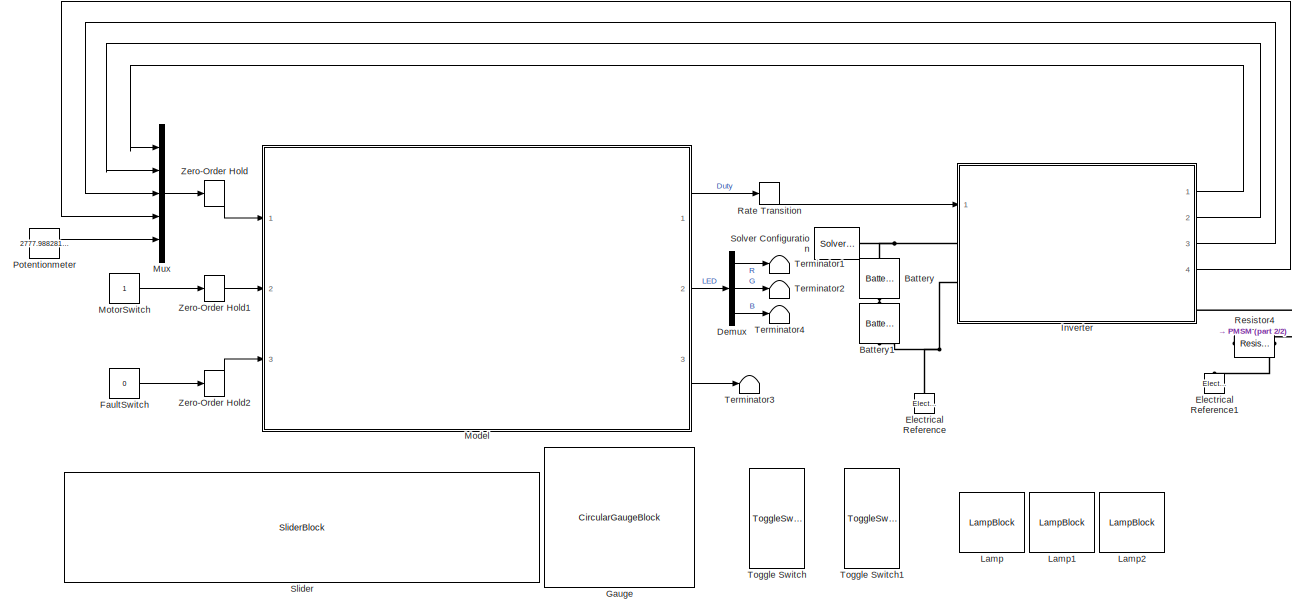
[diagram: root canvas - part 1/2, most of the canvas]
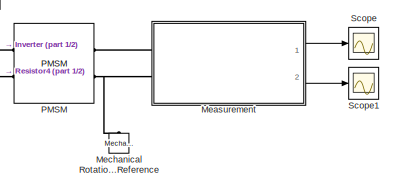
[diagram: root canvas - part 2/2, middle right region]
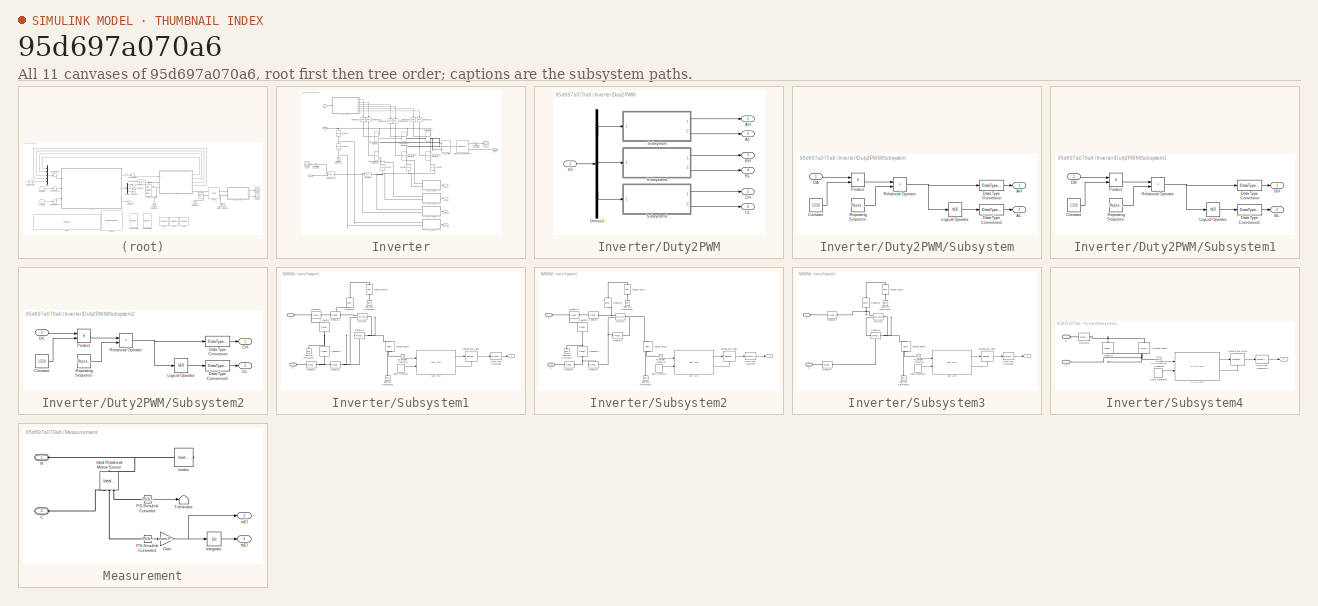
[diagram: thumbnail index - all 11 canvases of the model, root first then tree order]
MODEL slx_95d697a070a6
KIND model
CONFIG AbsTol = auto
CONFIG EnableMultiTasking = off
CONFIG FixedStep = Ts_simscape
CONFIG MaxStep = auto
CONFIG MinStep = auto
CONFIG RelTol = 1e-3
CONFIG SampleTimeConstraint = Unconstrained
CONFIG SolverName = FixedStepAuto
CONFIG StartTime = 0.0
CONFIG StopTime = 4
BLOCK [Reference] Battery  REF=ee_lib/Sources/Battery
  NameLocation = right
  Ports = [0, 0, 0, 0, 0, 1, 1]
  SourceBlock = ee_lib/Sources/Battery
  SourceProductBaseCode = PS
  SourceType = Battery
BLOCK [Reference] Battery1  REF=ee_lib/Sources/Battery
  NameLocation = right
  Ports = [0, 0, 0, 0, 0, 1, 1]
  SourceBlock = ee_lib/Sources/Battery
  SourceProductBaseCode = PS
  SourceType = Battery
BLOCK [Demux] Demux
  Outputs = 3
  Ports = [1, 3]
BLOCK [Reference] Electrical Reference  REF=fl_lib/Electrical/Electrical Elements/Electrical Reference
  NameLocation = right
  Ports = [0, 0, 0, 0, 0, 1]
  SourceBlock = fl_lib/Electrical/Electrical Elements/Electrical Reference
  SourceProductBaseCode = SS
  SourceType = Electrical Reference
BLOCK [Reference] Electrical Reference1  REF=fl_lib/Electrical/Electrical Elements/Electrical Reference
  NameLocation = right
  Ports = [0, 0, 0, 0, 0, 1]
  SourceBlock = fl_lib/Electrical/Electrical Elements/Electrical Reference
  SourceProductBaseCode = SS
  SourceType = Electrical Reference
BLOCK [Constant] FaultSwitch
  OutDataTypeStr = boolean
  Value = 0
BLOCK [CircularGaugeBlock] Gauge
  ScaleMax = 6.28
  TickInterval = 1
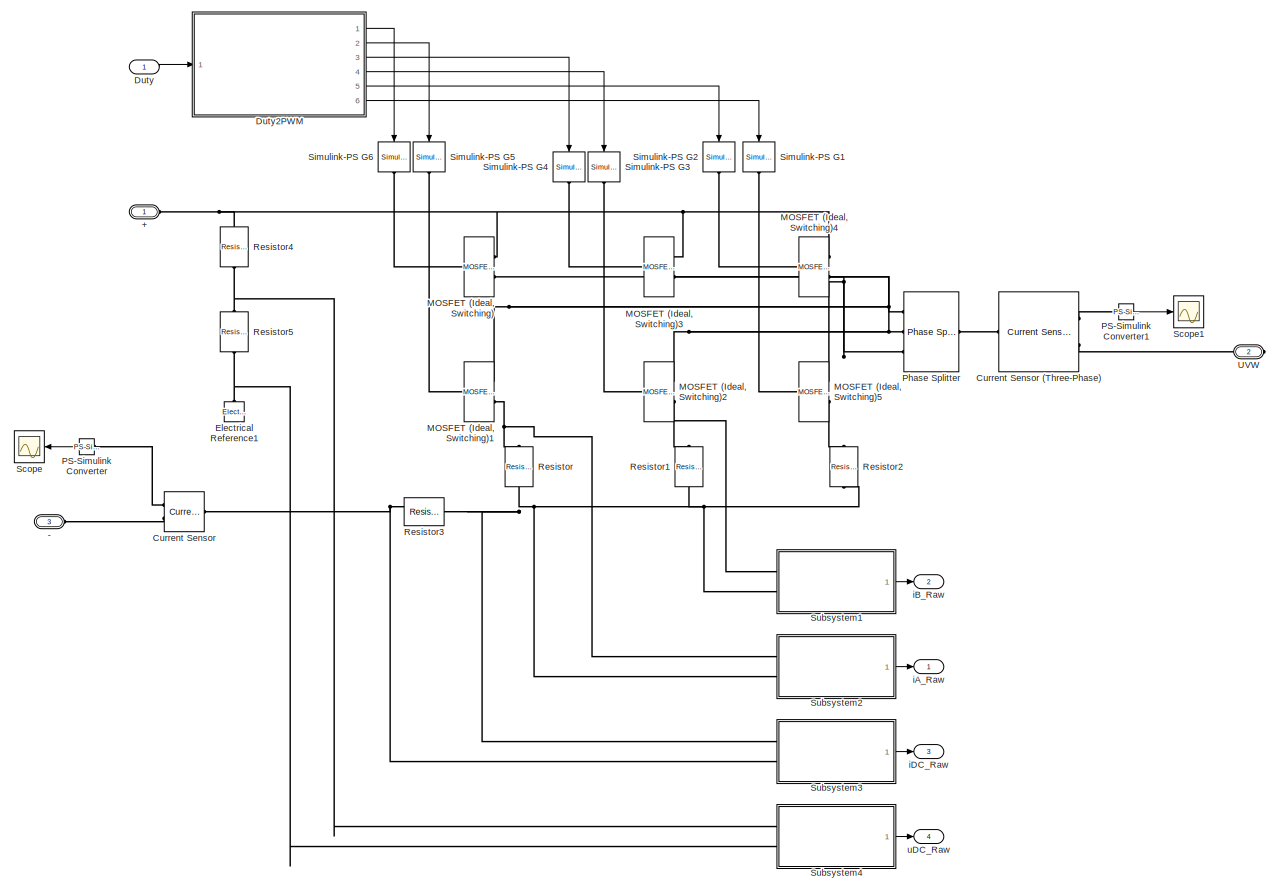
[diagram: Inverter - part 1/1, most of the canvas]
BLOCK [SubSystem] Inverter
  Ports = [1, 4, 0, 0, 0, 2, 1]
  RequestExecContextInheritance = off
BLOCK [Outport] Inverter/ iA_Raw
BLOCK [Outport] Inverter/ iB_Raw
  Port = 2
BLOCK [Outport] Inverter/ iDC_Raw
  Port = 3
BLOCK [Outport] Inverter/ uDC_Raw
  Port = 4
BLOCK [PMIOPort] Inverter/+
  Side = Left
BLOCK [PMIOPort] Inverter/-
  Port = 3
  Side = Left
BLOCK [Reference] Inverter/Current Sensor  REF=fl_lib/Electrical/Electrical Sensors/Current Sensor
  Ports = [0, 0, 0, 0, 0, 1, 2]
  SourceBlock = fl_lib/Electrical/Electrical Sensors/Current Sensor
  SourceProductBaseCode = SS
  SourceType = Current Sensor
BLOCK [Reference] Inverter/Current Sensor (Three-Phase)  REF=ee_lib/Sensors &
Transducers/Current Sensor
(Three-Phase)
  Ports = [0, 0, 0, 0, 0, 1, 2]
  SourceBlock = ee_lib/Sensors &\nTransducers/Current Sensor\n(Three-Phase)
  SourceProductBaseCode = PS
  SourceType = Current Sensor\n(Three-Phase)
BLOCK [Inport] Inverter/Duty
BLOCK [SubSystem] Inverter/Duty2PWM
  Ports = [1, 6]
  RequestExecContextInheritance = off
BLOCK [Outport] Inverter/Duty2PWM/AH
BLOCK [Outport] Inverter/Duty2PWM/AL
  Port = 2
BLOCK [Outport] Inverter/Duty2PWM/BH
  Port = 3
BLOCK [Outport] Inverter/Duty2PWM/BL
  Port = 4
BLOCK [Outport] Inverter/Duty2PWM/CH
  Port = 5
BLOCK [Outport] Inverter/Duty2PWM/CL
  Port = 6
BLOCK [Demux] Inverter/Duty2PWM/Demux1
  Outputs = 3
  Ports = [1, 3]
BLOCK [Inport] Inverter/Duty2PWM/In1
BLOCK [SubSystem] Inverter/Duty2PWM/Subsystem
  Ports = [1, 2]
  RequestExecContextInheritance = off
BLOCK [Outport] Inverter/Duty2PWM/Subsystem/AH
BLOCK [Outport] Inverter/Duty2PWM/Subsystem/AL
  Port = 2
BLOCK [Constant] Inverter/Duty2PWM/Subsystem/Constant
  Value = 1250
BLOCK [Inport] Inverter/Duty2PWM/Subsystem/DA
BLOCK [DataTypeConversion] Inverter/Duty2PWM/Subsystem/Data Type Conversion
  RndMeth = Floor
  SaturateOnIntegerOverflow = off
BLOCK [DataTypeConversion] Inverter/Duty2PWM/Subsystem/Data Type Conversion1
  RndMeth = Floor
  SaturateOnIntegerOverflow = off
BLOCK [Logic] Inverter/Duty2PWM/Subsystem/Logical Operator
  AllPortsSameDT = off
  Operator = NOT
  OutDataTypeStr = boolean
  Ports = [1, 1]
BLOCK [Product] Inverter/Duty2PWM/Subsystem/Product
  Ports = [2, 1]
BLOCK [RelationalOperator] Inverter/Duty2PWM/Subsystem/Relational Operator
  InputSameDT = off
  Operator = >
  OutDataTypeStr = boolean
  Ports = [2, 1]
  RndMeth = Simplest
BLOCK [Reference] Inverter/Duty2PWM/Subsystem/Repeating Sequence  REF=simulink/Sources/Repeating
Sequence
  Ports = [0, 1]
  SourceBlock = simulink/Sources/Repeating\nSequence
  SourceProductBaseCode = SL
  SourceType = Repeating table
BLOCK [SubSystem] Inverter/Duty2PWM/Subsystem1
  Ports = [1, 2]
  RequestExecContextInheritance = off
BLOCK [Outport] Inverter/Duty2PWM/Subsystem1/BH
BLOCK [Outport] Inverter/Duty2PWM/Subsystem1/BL
  Port = 2
BLOCK [Constant] Inverter/Duty2PWM/Subsystem1/Constant
  Value = 1250
BLOCK [Inport] Inverter/Duty2PWM/Subsystem1/DB
BLOCK [DataTypeConversion] Inverter/Duty2PWM/Subsystem1/Data Type Conversion
  RndMeth = Floor
  SaturateOnIntegerOverflow = off
BLOCK [DataTypeConversion] Inverter/Duty2PWM/Subsystem1/Data Type Conversion1
  RndMeth = Floor
  SaturateOnIntegerOverflow = off
BLOCK [Logic] Inverter/Duty2PWM/Subsystem1/Logical Operator
  AllPortsSameDT = off
  Operator = NOT
  OutDataTypeStr = boolean
  Ports = [1, 1]
BLOCK [Product] Inverter/Duty2PWM/Subsystem1/Product
  Ports = [2, 1]
BLOCK [RelationalOperator] Inverter/Duty2PWM/Subsystem1/Relational Operator
  InputSameDT = off
  Operator = >
  OutDataTypeStr = boolean
  Ports = [2, 1]
  RndMeth = Simplest
BLOCK [Reference] Inverter/Duty2PWM/Subsystem1/Repeating Sequence  REF=simulink/Sources/Repeating
Sequence
  Ports = [0, 1]
  SourceBlock = simulink/Sources/Repeating\nSequence
  SourceProductBaseCode = SL
  SourceType = Repeating table
BLOCK [SubSystem] Inverter/Duty2PWM/Subsystem2
  Ports = [1, 2]
  RequestExecContextInheritance = off
BLOCK [Outport] Inverter/Duty2PWM/Subsystem2/CH
BLOCK [Outport] Inverter/Duty2PWM/Subsystem2/CL
  Port = 2
BLOCK [Constant] Inverter/Duty2PWM/Subsystem2/Constant
  Value = 1250
BLOCK [Inport] Inverter/Duty2PWM/Subsystem2/DC
BLOCK [DataTypeConversion] Inverter/Duty2PWM/Subsystem2/Data Type Conversion
  RndMeth = Floor
  SaturateOnIntegerOverflow = off
BLOCK [DataTypeConversion] Inverter/Duty2PWM/Subsystem2/Data Type Conversion1
  RndMeth = Floor
  SaturateOnIntegerOverflow = off
BLOCK [Logic] Inverter/Duty2PWM/Subsystem2/Logical Operator
  AllPortsSameDT = off
  Operator = NOT
  OutDataTypeStr = boolean
  Ports = [1, 1]
BLOCK [Product] Inverter/Duty2PWM/Subsystem2/Product
  Ports = [2, 1]
BLOCK [RelationalOperator] Inverter/Duty2PWM/Subsystem2/Relational Operator
  InputSameDT = off
  Operator = >
  OutDataTypeStr = boolean
  Ports = [2, 1]
  RndMeth = Simplest
BLOCK [Reference] Inverter/Duty2PWM/Subsystem2/Repeating Sequence  REF=simulink/Sources/Repeating
Sequence
  Ports = [0, 1]
  SourceBlock = simulink/Sources/Repeating\nSequence
  SourceProductBaseCode = SL
  SourceType = Repeating table
BLOCK [Reference] Inverter/Electrical Reference1  REF=fl_lib/Electrical/Electrical Elements/Electrical Reference
  NameLocation = right
  Ports = [0, 0, 0, 0, 0, 1]
  SourceBlock = fl_lib/Electrical/Electrical Elements/Electrical Reference
  SourceProductBaseCode = SS
  SourceType = Electrical Reference
BLOCK [Reference] Inverter/MOSFET (Ideal, Switching)  REF=ee_lib/Semiconductors &
Converters/MOSFET
(Ideal,
Switching)
  Ports = [0, 0, 0, 0, 0, 1, 2]
  SourceBlock = ee_lib/Semiconductors &\nConverters/MOSFET\n(Ideal,\nSwitching)
  SourceProductBaseCode = PS
  SourceType = MOSFET\n(Ideal,\nSwitching)
BLOCK [Reference] Inverter/MOSFET (Ideal, Switching)1  REF=ee_lib/Semiconductors &
Converters/MOSFET
(Ideal,
Switching)
  Ports = [0, 0, 0, 0, 0, 1, 2]
  SourceBlock = ee_lib/Semiconductors &\nConverters/MOSFET\n(Ideal,\nSwitching)
  SourceProductBaseCode = PS
  SourceType = MOSFET\n(Ideal,\nSwitching)
BLOCK [Reference] Inverter/MOSFET (Ideal, Switching)2  REF=ee_lib/Semiconductors &
Converters/MOSFET
(Ideal,
Switching)
  Ports = [0, 0, 0, 0, 0, 1, 2]
  SourceBlock = ee_lib/Semiconductors &\nConverters/MOSFET\n(Ideal,\nSwitching)
  SourceProductBaseCode = PS
  SourceType = MOSFET\n(Ideal,\nSwitching)
BLOCK [Reference] Inverter/MOSFET (Ideal, Switching)3  REF=ee_lib/Semiconductors &
Converters/MOSFET
(Ideal,
Switching)
  Ports = [0, 0, 0, 0, 0, 1, 2]
  SourceBlock = ee_lib/Semiconductors &\nConverters/MOSFET\n(Ideal,\nSwitching)
  SourceProductBaseCode = PS
  SourceType = MOSFET\n(Ideal,\nSwitching)
BLOCK [Reference] Inverter/MOSFET (Ideal, Switching)4  REF=ee_lib/Semiconductors &
Converters/MOSFET
(Ideal,
Switching)
  Ports = [0, 0, 0, 0, 0, 1, 2]
  SourceBlock = ee_lib/Semiconductors &\nConverters/MOSFET\n(Ideal,\nSwitching)
  SourceProductBaseCode = PS
  SourceType = MOSFET\n(Ideal,\nSwitching)
BLOCK [Reference] Inverter/MOSFET (Ideal, Switching)5  REF=ee_lib/Semiconductors &
Converters/MOSFET
(Ideal,
Switching)
  Ports = [0, 0, 0, 0, 0, 1, 2]
  SourceBlock = ee_lib/Semiconductors &\nConverters/MOSFET\n(Ideal,\nSwitching)
  SourceProductBaseCode = PS
  SourceType = MOSFET\n(Ideal,\nSwitching)
BLOCK [Reference] Inverter/PS-Simulink Converter  REF=nesl_utility/PS-Simulink
Converter
  Ports = [0, 1, 0, 0, 0, 1]
  SourceBlock = nesl_utility/PS-Simulink\nConverter
  SourceProductBaseCode = SS
  SourceType = PS-Simulink\nConverter
BLOCK [Reference] Inverter/PS-Simulink Converter1  REF=nesl_utility/PS-Simulink
Converter
  Ports = [0, 1, 0, 0, 0, 1]
  SourceBlock = nesl_utility/PS-Simulink\nConverter
  SourceProductBaseCode = SS
  SourceType = PS-Simulink\nConverter
BLOCK [Reference] Inverter/Phase Splitter  REF=ee_lib/Connectors &
References/Phase Splitter
  Ports = [0, 0, 0, 0, 0, 1, 3]
  SourceBlock = ee_lib/Connectors &\nReferences/Phase Splitter
  SourceProductBaseCode = PS
  SourceType = Phase Splitter
BLOCK [Reference] Inverter/Resistor  REF=fl_lib/Electrical/Electrical Elements/Resistor
  NameLocation = left
  Ports = [0, 0, 0, 0, 0, 1, 1]
  SourceBlock = fl_lib/Electrical/Electrical Elements/Resistor
  SourceProductBaseCode = SS
  SourceType = Resistor
BLOCK [Reference] Inverter/Resistor1  REF=fl_lib/Electrical/Electrical Elements/Resistor
  NameLocation = left
  Ports = [0, 0, 0, 0, 0, 1, 1]
  SourceBlock = fl_lib/Electrical/Electrical Elements/Resistor
  SourceProductBaseCode = SS
  SourceType = Resistor
BLOCK [Reference] Inverter/Resistor2  REF=fl_lib/Electrical/Electrical Elements/Resistor
  NameLocation = left
  Ports = [0, 0, 0, 0, 0, 1, 1]
  SourceBlock = fl_lib/Electrical/Electrical Elements/Resistor
  SourceProductBaseCode = SS
  SourceType = Resistor
BLOCK [Reference] Inverter/Resistor3  REF=fl_lib/Electrical/Electrical Elements/Resistor
  NameLocation = top
  Ports = [0, 0, 0, 0, 0, 1, 1]
  SourceBlock = fl_lib/Electrical/Electrical Elements/Resistor
  SourceProductBaseCode = SS
  SourceType = Resistor
BLOCK [Reference] Inverter/Resistor4  REF=fl_lib/Electrical/Electrical Elements/Resistor
  NameLocation = left
  Ports = [0, 0, 0, 0, 0, 1, 1]
  SourceBlock = fl_lib/Electrical/Electrical Elements/Resistor
  SourceProductBaseCode = SS
  SourceType = Resistor
BLOCK [Reference] Inverter/Resistor5  REF=fl_lib/Electrical/Electrical Elements/Resistor
  NameLocation = left
  Ports = [0, 0, 0, 0, 0, 1, 1]
  SourceBlock = fl_lib/Electrical/Electrical Elements/Resistor
  SourceProductBaseCode = SS
  SourceType = Resistor
BLOCK [Scope] Inverter/Scope
  Floating = off
  NumInputPorts = 1
  Ports = [1]
  ScopeSpecificationString = Simulink.scopes.TimeScopeBlockCfg('CurrentConfiguration', extmgr.ConfigurationSet(extmgr.Configuration('Core','General UI',true),extmgr.Configuration('Core','Source UI',true),extmgr.Configuration('Sources','WiredSimulink',true,'DataLoggingVariableName','ScopeData3'),extmgr.Configuration('Visuals','Time Domain',true,'SerializedDisplays',{struct('MinYLimReal','-0.13845','MaxYLimReal','1.25097','YLab...<+1786ch>
BLOCK [Scope] Inverter/Scope1
  Floating = off
  NumInputPorts = 1
  Ports = [1]
  ScopeSpecificationString = Simulink.scopes.TimeScopeBlockCfg('CurrentConfiguration', extmgr.ConfigurationSet(extmgr.Configuration('Core','General UI',true),extmgr.Configuration('Core','Source UI',true),extmgr.Configuration('Sources','WiredSimulink',true,'DataLoggingVariableName','ScopeData5'),extmgr.Configuration('Visuals','Time Domain',true,'SerializedDisplays',{struct('MinYLimReal','-1.40117','MaxYLimReal','1.35141','YLab...<+1410ch>
BLOCK [Reference] Inverter/Simulink-PS G1  REF=nesl_utility/Simulink-PS
Converter
  NameLocation = left
  Ports = [1, 0, 0, 0, 0, 0, 1]
  SourceBlock = nesl_utility/Simulink-PS\nConverter
  SourceProductName = Utilities
  SourceType = Simulink-PS\nConverter
BLOCK [Reference] Inverter/Simulink-PS G2  REF=nesl_utility/Simulink-PS
Converter
  NameLocation = left
  Ports = [1, 0, 0, 0, 0, 0, 1]
  SourceBlock = nesl_utility/Simulink-PS\nConverter
  SourceProductName = Utilities
  SourceType = Simulink-PS\nConverter
BLOCK [Reference] Inverter/Simulink-PS G3  REF=nesl_utility/Simulink-PS
Converter
  NameLocation = right
  Ports = [1, 0, 0, 0, 0, 0, 1]
  SourceBlock = nesl_utility/Simulink-PS\nConverter
  SourceProductName = Utilities
  SourceType = Simulink-PS\nConverter
BLOCK [Reference] Inverter/Simulink-PS G4  REF=nesl_utility/Simulink-PS
Converter
  NameLocation = left
  Ports = [1, 0, 0, 0, 0, 0, 1]
  SourceBlock = nesl_utility/Simulink-PS\nConverter
  SourceProductName = Utilities
  SourceType = Simulink-PS\nConverter
BLOCK [Reference] Inverter/Simulink-PS G5  REF=nesl_utility/Simulink-PS
Converter
  NameLocation = left
  Ports = [1, 0, 0, 0, 0, 0, 1]
  SourceBlock = nesl_utility/Simulink-PS\nConverter
  SourceProductName = Utilities
  SourceType = Simulink-PS\nConverter
BLOCK [Reference] Inverter/Simulink-PS G6  REF=nesl_utility/Simulink-PS
Converter
  NameLocation = left
  Ports = [1, 0, 0, 0, 0, 0, 1]
  SourceBlock = nesl_utility/Simulink-PS\nConverter
  SourceProductName = Utilities
  SourceType = Simulink-PS\nConverter
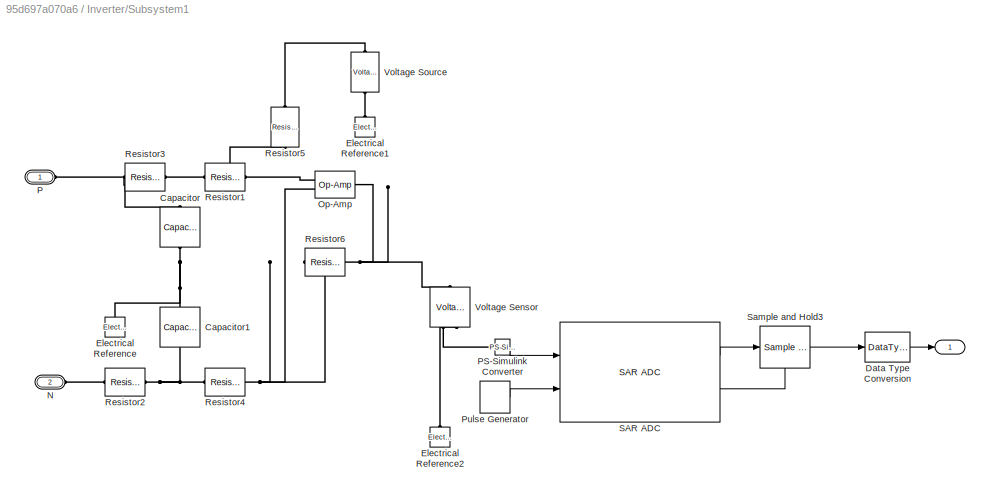
BLOCK [SubSystem] Inverter/Subsystem1
  Ports = [0, 1, 0, 0, 0, 2]
  RequestExecContextInheritance = off
BLOCK [Outport] Inverter/Subsystem1/ 
BLOCK [Reference] Inverter/Subsystem1/Capacitor  REF=fl_lib/Electrical/Electrical Elements/Capacitor
  NameLocation = left
  Ports = [0, 0, 0, 0, 0, 1, 1]
  SourceBlock = fl_lib/Electrical/Electrical Elements/Capacitor
  SourceProductBaseCode = SS
  SourceType = Capacitor
BLOCK [Reference] Inverter/Subsystem1/Capacitor1  REF=fl_lib/Electrical/Electrical Elements/Capacitor
  NameLocation = left
  Ports = [0, 0, 0, 0, 0, 1, 1]
  SourceBlock = fl_lib/Electrical/Electrical Elements/Capacitor
  SourceProductBaseCode = SS
  SourceType = Capacitor
BLOCK [DataTypeConversion] Inverter/Subsystem1/Data Type Conversion
  OutDataTypeStr = uint16
  RndMeth = Floor
  SaturateOnIntegerOverflow = off
BLOCK [Reference] Inverter/Subsystem1/Electrical Reference  REF=fl_lib/Electrical/Electrical Elements/Electrical Reference
  NameLocation = right
  Ports = [0, 0, 0, 0, 0, 1]
  SourceBlock = fl_lib/Electrical/Electrical Elements/Electrical Reference
  SourceProductBaseCode = SS
  SourceType = Electrical Reference
BLOCK [Reference] Inverter/Subsystem1/Electrical Reference1  REF=fl_lib/Electrical/Electrical Elements/Electrical Reference
  NameLocation = right
  Ports = [0, 0, 0, 0, 0, 1]
  SourceBlock = fl_lib/Electrical/Electrical Elements/Electrical Reference
  SourceProductBaseCode = SS
  SourceType = Electrical Reference
BLOCK [Reference] Inverter/Subsystem1/Electrical Reference2  REF=fl_lib/Electrical/Electrical Elements/Electrical Reference
  NameLocation = right
  Ports = [0, 0, 0, 0, 0, 1]
  SourceBlock = fl_lib/Electrical/Electrical Elements/Electrical Reference
  SourceProductBaseCode = SS
  SourceType = Electrical Reference
BLOCK [PMIOPort] Inverter/Subsystem1/N
  Port = 2
  Side = Left
BLOCK [Reference] Inverter/Subsystem1/Op-Amp  REF=fl_lib/Electrical/Electrical Elements/Op-Amp
  Ports = [0, 0, 0, 0, 0, 2, 1]
  SourceBlock = fl_lib/Electrical/Electrical Elements/Op-Amp
  SourceProductBaseCode = SS
  SourceType = Op-Amp
BLOCK [PMIOPort] Inverter/Subsystem1/P
  Side = Left
BLOCK [Reference] Inverter/Subsystem1/PS-Simulink Converter  REF=nesl_utility/PS-Simulink
Converter
  Ports = [0, 1, 0, 0, 0, 1]
  SourceBlock = nesl_utility/PS-Simulink\nConverter
  SourceProductBaseCode = SS
  SourceType = PS-Simulink\nConverter
BLOCK [DiscretePulseGenerator] Inverter/Subsystem1/Pulse Generator
  Period = Tctr
  PhaseDelay = Tctr
  Ports = [0, 1]
  PulseType = Time based
  PulseWidth = 50
BLOCK [Reference] Inverter/Subsystem1/Resistor1  REF=fl_lib/Electrical/Electrical Elements/Resistor
  NameLocation = top
  Ports = [0, 0, 0, 0, 0, 1, 1]
  SourceBlock = fl_lib/Electrical/Electrical Elements/Resistor
  SourceProductBaseCode = SS
  SourceType = Resistor
BLOCK [Reference] Inverter/Subsystem1/Resistor2  REF=fl_lib/Electrical/Electrical Elements/Resistor
  NameLocation = top
  Ports = [0, 0, 0, 0, 0, 1, 1]
  SourceBlock = fl_lib/Electrical/Electrical Elements/Resistor
  SourceProductBaseCode = SS
  SourceType = Resistor
BLOCK [Reference] Inverter/Subsystem1/Resistor3  REF=fl_lib/Electrical/Electrical Elements/Resistor
  NameLocation = top
  Ports = [0, 0, 0, 0, 0, 1, 1]
  SourceBlock = fl_lib/Electrical/Electrical Elements/Resistor
  SourceProductBaseCode = SS
  SourceType = Resistor
BLOCK [Reference] Inverter/Subsystem1/Resistor4  REF=fl_lib/Electrical/Electrical Elements/Resistor
  NameLocation = top
  Ports = [0, 0, 0, 0, 0, 1, 1]
  SourceBlock = fl_lib/Electrical/Electrical Elements/Resistor
  SourceProductBaseCode = SS
  SourceType = Resistor
BLOCK [Reference] Inverter/Subsystem1/Resistor5  REF=fl_lib/Electrical/Electrical Elements/Resistor
  NameLocation = right
  Ports = [0, 0, 0, 0, 0, 1, 1]
  SourceBlock = fl_lib/Electrical/Electrical Elements/Resistor
  SourceProductBaseCode = SS
  SourceType = Resistor
BLOCK [Reference] Inverter/Subsystem1/Resistor6  REF=fl_lib/Electrical/Electrical Elements/Resistor
  NameLocation = top
  Ports = [0, 0, 0, 0, 0, 1, 1]
  SourceBlock = fl_lib/Electrical/Electrical Elements/Resistor
  SourceProductBaseCode = SS
  SourceType = Resistor
BLOCK [Reference] Inverter/Subsystem1/SAR ADC  REF=msbAdcArchitectures/SAR ADC
  Ports = [2, 2]
  SourceBlock = msbAdcArchitectures/SAR ADC
  SourceProductBaseCode = AM
  SourceType = SARADC
BLOCK [Reference] Inverter/Subsystem1/Sample and Hold3  REF=dspsigops/Sample
and Hold
  NameLocation = top
  Ports = [1, 1, 0, 1]
  SourceBlock = dspsigops/Sample\nand Hold
  SourceProductBaseCode = DS
  SourceType = Sample and Hold
BLOCK [Reference] Inverter/Subsystem1/Voltage Sensor  REF=fl_lib/Electrical/Electrical Sensors/Voltage Sensor
  NameLocation = right
  Ports = [0, 0, 0, 0, 0, 1, 2]
  SourceBlock = fl_lib/Electrical/Electrical Sensors/Voltage Sensor
  SourceProductBaseCode = SS
  SourceType = Voltage Sensor
BLOCK [Reference] Inverter/Subsystem1/Voltage Source  REF=ee_lib/Sources/Voltage Source
  NameLocation = right
  Ports = [0, 0, 0, 0, 0, 1, 1]
  SourceBlock = ee_lib/Sources/Voltage Source
  SourceProductBaseCode = PS
  SourceType = Voltage Source
BLOCK [SubSystem] Inverter/Subsystem2
  Ports = [0, 1, 0, 0, 0, 2]
  RequestExecContextInheritance = off
BLOCK [Outport] Inverter/Subsystem2/ 
BLOCK [Reference] Inverter/Subsystem2/Capacitor  REF=fl_lib/Electrical/Electrical Elements/Capacitor
  NameLocation = left
  Ports = [0, 0, 0, 0, 0, 1, 1]
  SourceBlock = fl_lib/Electrical/Electrical Elements/Capacitor
  SourceProductBaseCode = SS
  SourceType = Capacitor
BLOCK [Reference] Inverter/Subsystem2/Capacitor1  REF=fl_lib/Electrical/Electrical Elements/Capacitor
  NameLocation = left
  Ports = [0, 0, 0, 0, 0, 1, 1]
  SourceBlock = fl_lib/Electrical/Electrical Elements/Capacitor
  SourceProductBaseCode = SS
  SourceType = Capacitor
BLOCK [DataTypeConversion] Inverter/Subsystem2/Data Type Conversion
  OutDataTypeStr = uint16
  RndMeth = Floor
  SaturateOnIntegerOverflow = off
BLOCK [Reference] Inverter/Subsystem2/Electrical Reference  REF=fl_lib/Electrical/Electrical Elements/Electrical Reference
  NameLocation = right
  Ports = [0, 0, 0, 0, 0, 1]
  SourceBlock = fl_lib/Electrical/Electrical Elements/Electrical Reference
  SourceProductBaseCode = SS
  SourceType = Electrical Reference
BLOCK [Reference] Inverter/Subsystem2/Electrical Reference1  REF=fl_lib/Electrical/Electrical Elements/Electrical Reference
  NameLocation = right
  Ports = [0, 0, 0, 0, 0, 1]
  SourceBlock = fl_lib/Electrical/Electrical Elements/Electrical Reference
  SourceProductBaseCode = SS
  SourceType = Electrical Reference
BLOCK [Reference] Inverter/Subsystem2/Electrical Reference2  REF=fl_lib/Electrical/Electrical Elements/Electrical Reference
  NameLocation = right
  Ports = [0, 0, 0, 0, 0, 1]
  SourceBlock = fl_lib/Electrical/Electrical Elements/Electrical Reference
  SourceProductBaseCode = SS
  SourceType = Electrical Reference
BLOCK [PMIOPort] Inverter/Subsystem2/N
  Port = 2
  Side = Left
BLOCK [Reference] Inverter/Subsystem2/Op-Amp  REF=fl_lib/Electrical/Electrical Elements/Op-Amp
  Ports = [0, 0, 0, 0, 0, 2, 1]
  SourceBlock = fl_lib/Electrical/Electrical Elements/Op-Amp
  SourceProductBaseCode = SS
  SourceType = Op-Amp
BLOCK [PMIOPort] Inverter/Subsystem2/P
  Side = Left
BLOCK [Reference] Inverter/Subsystem2/PS-Simulink Converter  REF=nesl_utility/PS-Simulink
Converter
  Ports = [0, 1, 0, 0, 0, 1]
  SourceBlock = nesl_utility/PS-Simulink\nConverter
  SourceProductBaseCode = SS
  SourceType = PS-Simulink\nConverter
BLOCK [DiscretePulseGenerator] Inverter/Subsystem2/Pulse Generator
  Period = Tctr
  PhaseDelay = Tctr
  Ports = [0, 1]
  PulseType = Time based
  PulseWidth = 50
BLOCK [Reference] Inverter/Subsystem2/Resistor1  REF=fl_lib/Electrical/Electrical Elements/Resistor
  NameLocation = top
  Ports = [0, 0, 0, 0, 0, 1, 1]
  SourceBlock = fl_lib/Electrical/Electrical Elements/Resistor
  SourceProductBaseCode = SS
  SourceType = Resistor
BLOCK [Reference] Inverter/Subsystem2/Resistor2  REF=fl_lib/Electrical/Electrical Elements/Resistor
  NameLocation = top
  Ports = [0, 0, 0, 0, 0, 1, 1]
  SourceBlock = fl_lib/Electrical/Electrical Elements/Resistor
  SourceProductBaseCode = SS
  SourceType = Resistor
BLOCK [Reference] Inverter/Subsystem2/Resistor3  REF=fl_lib/Electrical/Electrical Elements/Resistor
  NameLocation = top
  Ports = [0, 0, 0, 0, 0, 1, 1]
  SourceBlock = fl_lib/Electrical/Electrical Elements/Resistor
  SourceProductBaseCode = SS
  SourceType = Resistor
BLOCK [Reference] Inverter/Subsystem2/Resistor4  REF=fl_lib/Electrical/Electrical Elements/Resistor
  NameLocation = top
  Ports = [0, 0, 0, 0, 0, 1, 1]
  SourceBlock = fl_lib/Electrical/Electrical Elements/Resistor
  SourceProductBaseCode = SS
  SourceType = Resistor
BLOCK [Reference] Inverter/Subsystem2/Resistor5  REF=fl_lib/Electrical/Electrical Elements/Resistor
  NameLocation = right
  Ports = [0, 0, 0, 0, 0, 1, 1]
  SourceBlock = fl_lib/Electrical/Electrical Elements/Resistor
  SourceProductBaseCode = SS
  SourceType = Resistor
BLOCK [Reference] Inverter/Subsystem2/Resistor6  REF=fl_lib/Electrical/Electrical Elements/Resistor
  NameLocation = top
  Ports = [0, 0, 0, 0, 0, 1, 1]
  SourceBlock = fl_lib/Electrical/Electrical Elements/Resistor
  SourceProductBaseCode = SS
  SourceType = Resistor
BLOCK [Reference] Inverter/Subsystem2/SAR ADC  REF=msbAdcArchitectures/SAR ADC
  Ports = [2, 2]
  SourceBlock = msbAdcArchitectures/SAR ADC
  SourceProductBaseCode = AM
  SourceType = SARADC
BLOCK [Reference] Inverter/Subsystem2/Sample and Hold3  REF=dspsigops/Sample
and Hold
  NameLocation = top
  Ports = [1, 1, 0, 1]
  SourceBlock = dspsigops/Sample\nand Hold
  SourceProductBaseCode = DS
  SourceType = Sample and Hold
BLOCK [Reference] Inverter/Subsystem2/Voltage Sensor  REF=fl_lib/Electrical/Electrical Sensors/Voltage Sensor
  NameLocation = right
  Ports = [0, 0, 0, 0, 0, 1, 2]
  SourceBlock = fl_lib/Electrical/Electrical Sensors/Voltage Sensor
  SourceProductBaseCode = SS
  SourceType = Voltage Sensor
BLOCK [Reference] Inverter/Subsystem2/Voltage Source  REF=ee_lib/Sources/Voltage Source
  NameLocation = right
  Ports = [0, 0, 0, 0, 0, 1, 1]
  SourceBlock = ee_lib/Sources/Voltage Source
  SourceProductBaseCode = PS
  SourceType = Voltage Source
BLOCK [SubSystem] Inverter/Subsystem3
  Ports = [0, 1, 0, 0, 0, 2]
  RequestExecContextInheritance = off
BLOCK [Outport] Inverter/Subsystem3/ 
BLOCK [DataTypeConversion] Inverter/Subsystem3/Data Type Conversion
  OutDataTypeStr = uint16
  RndMeth = Floor
  SaturateOnIntegerOverflow = off
BLOCK [Reference] Inverter/Subsystem3/Electrical Reference1  REF=fl_lib/Electrical/Electrical Elements/Electrical Reference
  NameLocation = right
  Ports = [0, 0, 0, 0, 0, 1]
  SourceBlock = fl_lib/Electrical/Electrical Elements/Electrical Reference
  SourceProductBaseCode = SS
  SourceType = Electrical Reference
BLOCK [Reference] Inverter/Subsystem3/Electrical Reference2  REF=fl_lib/Electrical/Electrical Elements/Electrical Reference
  NameLocation = right
  Ports = [0, 0, 0, 0, 0, 1]
  SourceBlock = fl_lib/Electrical/Electrical Elements/Electrical Reference
  SourceProductBaseCode = SS
  SourceType = Electrical Reference
BLOCK [PMIOPort] Inverter/Subsystem3/N
  Port = 2
  Side = Left
BLOCK [Reference] Inverter/Subsystem3/Op-Amp  REF=fl_lib/Electrical/Electrical Elements/Op-Amp
  Ports = [0, 0, 0, 0, 0, 2, 1]
  SourceBlock = fl_lib/Electrical/Electrical Elements/Op-Amp
  SourceProductBaseCode = SS
  SourceType = Op-Amp
BLOCK [PMIOPort] Inverter/Subsystem3/P
  Side = Left
BLOCK [Reference] Inverter/Subsystem3/PS-Simulink Converter  REF=nesl_utility/PS-Simulink
Converter
  Ports = [0, 1, 0, 0, 0, 1]
  SourceBlock = nesl_utility/PS-Simulink\nConverter
  SourceProductBaseCode = SS
  SourceType = PS-Simulink\nConverter
BLOCK [DiscretePulseGenerator] Inverter/Subsystem3/Pulse Generator
  Period = Tctr
  PhaseDelay = Tctr/4
  Ports = [0, 1]
  PulseType = Time based
  PulseWidth = 50
BLOCK [Reference] Inverter/Subsystem3/Resistor2  REF=fl_lib/Electrical/Electrical Elements/Resistor
  NameLocation = top
  Ports = [0, 0, 0, 0, 0, 1, 1]
  SourceBlock = fl_lib/Electrical/Electrical Elements/Resistor
  SourceProductBaseCode = SS
  SourceType = Resistor
BLOCK [Reference] Inverter/Subsystem3/Resistor3  REF=fl_lib/Electrical/Electrical Elements/Resistor
  NameLocation = top
  Ports = [0, 0, 0, 0, 0, 1, 1]
  SourceBlock = fl_lib/Electrical/Electrical Elements/Resistor
  SourceProductBaseCode = SS
  SourceType = Resistor
BLOCK [Reference] Inverter/Subsystem3/Resistor5  REF=fl_lib/Electrical/Electrical Elements/Resistor
  NameLocation = right
  Ports = [0, 0, 0, 0, 0, 1, 1]
  SourceBlock = fl_lib/Electrical/Electrical Elements/Resistor
  SourceProductBaseCode = SS
  SourceType = Resistor
BLOCK [Reference] Inverter/Subsystem3/Resistor6  REF=fl_lib/Electrical/Electrical Elements/Resistor
  NameLocation = top
  Ports = [0, 0, 0, 0, 0, 1, 1]
  SourceBlock = fl_lib/Electrical/Electrical Elements/Resistor
  SourceProductBaseCode = SS
  SourceType = Resistor
BLOCK [Reference] Inverter/Subsystem3/SAR ADC  REF=msbAdcArchitectures/SAR ADC
  Ports = [2, 2]
  SourceBlock = msbAdcArchitectures/SAR ADC
  SourceProductBaseCode = AM
  SourceType = SARADC
BLOCK [Reference] Inverter/Subsystem3/Sample and Hold3  REF=dspsigops/Sample
and Hold
  NameLocation = top
  Ports = [1, 1, 0, 1]
  SourceBlock = dspsigops/Sample\nand Hold
  SourceProductBaseCode = DS
  SourceType = Sample and Hold
BLOCK [Reference] Inverter/Subsystem3/Voltage Sensor  REF=fl_lib/Electrical/Electrical Sensors/Voltage Sensor
  NameLocation = right
  Ports = [0, 0, 0, 0, 0, 1, 2]
  SourceBlock = fl_lib/Electrical/Electrical Sensors/Voltage Sensor
  SourceProductBaseCode = SS
  SourceType = Voltage Sensor
BLOCK [Reference] Inverter/Subsystem3/Voltage Source  REF=ee_lib/Sources/Voltage Source
  NameLocation = right
  Ports = [0, 0, 0, 0, 0, 1, 1]
  SourceBlock = ee_lib/Sources/Voltage Source
  SourceProductBaseCode = PS
  SourceType = Voltage Source
BLOCK [SubSystem] Inverter/Subsystem4
  Ports = [0, 1, 0, 0, 0, 2]
  RequestExecContextInheritance = off
BLOCK [Outport] Inverter/Subsystem4/ 
BLOCK [Reference] Inverter/Subsystem4/Capacitor  REF=fl_lib/Electrical/Electrical Elements/Capacitor
  NameLocation = left
  Ports = [0, 0, 0, 0, 0, 1, 1]
  SourceBlock = fl_lib/Electrical/Electrical Elements/Capacitor
  SourceProductBaseCode = SS
  SourceType = Capacitor
BLOCK [DataTypeConversion] Inverter/Subsystem4/Data Type Conversion
  OutDataTypeStr = uint16
  RndMeth = Floor
  SaturateOnIntegerOverflow = off
BLOCK [PMIOPort] Inverter/Subsystem4/N
  Port = 2
  Side = Left
BLOCK [PMIOPort] Inverter/Subsystem4/P
  Side = Left
BLOCK [Reference] Inverter/Subsystem4/PS-Simulink Converter  REF=nesl_utility/PS-Simulink
Converter
  Ports = [0, 1, 0, 0, 0, 1]
  SourceBlock = nesl_utility/PS-Simulink\nConverter
  SourceProductBaseCode = SS
  SourceType = PS-Simulink\nConverter
BLOCK [DiscretePulseGenerator] Inverter/Subsystem4/Pulse Generator
  Period = Tctr
  PhaseDelay = Tctr/2
  Ports = [0, 1]
  PulseType = Time based
  PulseWidth = 50
BLOCK [Reference] Inverter/Subsystem4/Resistor6  REF=fl_lib/Electrical/Electrical Elements/Resistor
  NameLocation = top
  Ports = [0, 0, 0, 0, 0, 1, 1]
  SourceBlock = fl_lib/Electrical/Electrical Elements/Resistor
  SourceProductBaseCode = SS
  SourceType = Resistor
BLOCK [Reference] Inverter/Subsystem4/SAR ADC  REF=msbAdcArchitectures/SAR ADC
  Ports = [2, 2]
  SourceBlock = msbAdcArchitectures/SAR ADC
  SourceProductBaseCode = AM
  SourceType = SARADC
BLOCK [Reference] Inverter/Subsystem4/Sample and Hold3  REF=dspsigops/Sample
and Hold
  NameLocation = top
  Ports = [1, 1, 0, 1]
  SourceBlock = dspsigops/Sample\nand Hold
  SourceProductBaseCode = DS
  SourceType = Sample and Hold
BLOCK [Reference] Inverter/Subsystem4/Voltage Sensor  REF=fl_lib/Electrical/Electrical Sensors/Voltage Sensor
  NameLocation = right
  Ports = [0, 0, 0, 0, 0, 1, 2]
  SourceBlock = fl_lib/Electrical/Electrical Sensors/Voltage Sensor
  SourceProductBaseCode = SS
  SourceType = Voltage Sensor
BLOCK [PMIOPort] Inverter/UVW
  Port = 2
  Side = Right
BLOCK [LampBlock] Lamp
BLOCK [LampBlock] Lamp1
BLOCK [LampBlock] Lamp2
BLOCK [SubSystem] Measurement
  Ports = [0, 2, 0, 0, 0, 2]
  RequestExecContextInheritance = off
BLOCK [PMIOPort] Measurement/C
  Port = 2
  Side = Left
BLOCK [Gain] Measurement/Gain
  Gain = motor.Prs
BLOCK [Reference] Measurement/Ideal Rotational Motion Sensor  REF=fl_lib/Mechanical/Mechanical Sensors/Ideal Rotational
Motion Sensor
  NameLocation = right
  Ports = [0, 0, 0, 0, 0, 1, 3]
  SourceBlock = fl_lib/Mechanical/Mechanical Sensors/Ideal Rotational\nMotion Sensor
  SourceProductBaseCode = SS
  SourceType = Ideal Rotational\nMotion Sensor
BLOCK [Reference] Measurement/Inertia  REF=fl_lib/Mechanical/Rotational Elements/Inertia
  NameLocation = top
  Ports = [0, 0, 0, 0, 0, 1]
  SourceBlock = fl_lib/Mechanical/Rotational Elements/Inertia
  SourceProductBaseCode = SS
  SourceType = Inertia
BLOCK [Integrator] Measurement/Integrator
  Ports = [1, 1]
  WrapState = on
  WrappedStateLowerValue = 0
  WrappedStateUpperValue = 2*pi
BLOCK [Reference] Measurement/PS-Simulink Converter  REF=nesl_utility/PS-Simulink
Converter
  Ports = [0, 1, 0, 0, 0, 1]
  SourceBlock = nesl_utility/PS-Simulink\nConverter
  SourceProductBaseCode = SS
  SourceType = PS-Simulink\nConverter
BLOCK [Reference] Measurement/PS-Simulink Converter1  REF=nesl_utility/PS-Simulink
Converter
  Ports = [0, 1, 0, 0, 0, 1]
  SourceBlock = nesl_utility/PS-Simulink\nConverter
  SourceProductBaseCode = SS
  SourceType = PS-Simulink\nConverter
BLOCK [PMIOPort] Measurement/R
  Side = Left
BLOCK [Terminator] Measurement/Terminator
BLOCK [Outport] Measurement/thEl
  Port = 2
BLOCK [Outport] Measurement/wEl
BLOCK [Reference] Mechanical Rotational Reference  REF=fl_lib/Mechanical/Rotational Elements/Mechanical
Rotational Reference
  NameLocation = right
  Ports = [0, 0, 0, 0, 0, 1]
  SourceBlock = fl_lib/Mechanical/Rotational Elements/Mechanical\nRotational Reference
  SourceProductBaseCode = SS
  SourceType = Mechanical\nRotational Reference
BLOCK [ModelReference] Model
  ModelNameDialog = FOC_PIL_StateMch_model.slx
  ModelReferenceVersion = 1.590
  Ports = [3, 3]
BLOCK [Constant] MotorSwitch
  OutDataTypeStr = boolean
BLOCK [Mux] Mux
  DisplayOption = bar
  Inputs = 5
  Ports = [5, 1]
BLOCK [Reference] PMSM  REF=ee_lib/Electromechanical/Permanent Magnet/PMSM
  Ports = [0, 0, 0, 0, 0, 2, 2]
  SourceBlock = ee_lib/Electromechanical/Permanent Magnet/PMSM
  SourceProductBaseCode = PS
  SourceType = PMSM
BLOCK [Constant] Potentionmeter
  OutDataTypeStr = uint16
  Value = 2777.98828125
BLOCK [RateTransition] Rate Transition
BLOCK [Reference] Resistor4  REF=fl_lib/Electrical/Electrical Elements/Resistor
  NameLocation = top
  Ports = [0, 0, 0, 0, 0, 1, 1]
  SourceBlock = fl_lib/Electrical/Electrical Elements/Resistor
  SourceProductBaseCode = SS
  SourceType = Resistor
BLOCK [Scope] Scope
  Floating = off
  NumInputPorts = 1
  Ports = [1]
  ScopeSpecificationString = Simulink.scopes.TimeScopeBlockCfg('CurrentConfiguration', extmgr.ConfigurationSet(extmgr.Configuration('Core','General UI',true),extmgr.Configuration('Core','Source UI',true),extmgr.Configuration('Sources','WiredSimulink',true,'DataLoggingVariableName','ScopeData1'),extmgr.Configuration('Visuals','Time Domain',true),extmgr.Configuration('Tools','Plot Navigation',true),extmgr.Configuration('Tools',...<+40ch>
BLOCK [Scope] Scope1
  Floating = off
  NumInputPorts = 1
  Ports = [1]
  ScopeSpecificationString = Simulink.scopes.TimeScopeBlockCfg('CurrentConfiguration', extmgr.ConfigurationSet(extmgr.Configuration('Core','General UI',true),extmgr.Configuration('Core','Source UI',true),extmgr.Configuration('Sources','WiredSimulink',true,'DataLoggingVariableName','ScopeData2'),extmgr.Configuration('Visuals','Time Domain',true),extmgr.Configuration('Tools','Plot Navigation',true),extmgr.Configuration('Tools',...<+40ch>
BLOCK [SliderBlock] Slider
  ScaleMax = 4095
BLOCK [Reference] Solver Configuration  REF=nesl_utility/Solver
Configuration
  Ports = [0, 0, 0, 0, 0, 0, 1]
  SourceBlock = nesl_utility/Solver\nConfiguration
  SourceProductBaseCode = SS
  SourceType = Solver\nConfiguration
BLOCK [Terminator] Terminator1
BLOCK [Terminator] Terminator2
BLOCK [Terminator] Terminator3
BLOCK [Terminator] Terminator4
BLOCK [ToggleSwitchBlock] Toggle Switch
BLOCK [ToggleSwitchBlock] Toggle Switch1
BLOCK [ZeroOrderHold] Zero-Order Hold
  SampleTime = Tctr
BLOCK [ZeroOrderHold] Zero-Order Hold1
  SampleTime = Tctr
BLOCK [ZeroOrderHold] Zero-Order Hold2
  SampleTime = Tctr
LINE Demux:1 -> Terminator1:1
LINE Demux:2 -> Terminator2:1
LINE Demux:3 -> Terminator4:1
LINE FaultSwitch:1 -> Zero-Order Hold2:1
LINE Inverter/Duty2PWM/Demux1:1 -> Inverter/Duty2PWM/Subsystem:1
LINE Inverter/Duty2PWM/Demux1:2 -> Inverter/Duty2PWM/Subsystem1:1
LINE Inverter/Duty2PWM/Demux1:3 -> Inverter/Duty2PWM/Subsystem2:1
LINE Inverter/Duty2PWM/In1:1 -> Inverter/Duty2PWM/Demux1:1
LINE Inverter/Duty2PWM/Subsystem/Constant:1 -> Inverter/Duty2PWM/Subsystem/Product:2
LINE Inverter/Duty2PWM/Subsystem/DA:1 -> Inverter/Duty2PWM/Subsystem/Product:1
LINE Inverter/Duty2PWM/Subsystem/Data Type Conversion1:1 -> Inverter/Duty2PWM/Subsystem/AL:1
LINE Inverter/Duty2PWM/Subsystem/Data Type Conversion:1 -> Inverter/Duty2PWM/Subsystem/AH:1
LINE Inverter/Duty2PWM/Subsystem/Logical Operator:1 -> Inverter/Duty2PWM/Subsystem/Data Type Conversion1:1
LINE Inverter/Duty2PWM/Subsystem/Product:1 -> Inverter/Duty2PWM/Subsystem/Relational Operator:1
NET Inverter/Duty2PWM/Subsystem/Relational Operator:1 -> Inverter/Duty2PWM/Subsystem/Data Type Conversion:1, Inverter/Duty2PWM/Subsystem/Logical Operator:1
LINE Inverter/Duty2PWM/Subsystem/Repeating Sequence:1 -> Inverter/Duty2PWM/Subsystem/Relational Operator:2
LINE Inverter/Duty2PWM/Subsystem1/Constant:1 -> Inverter/Duty2PWM/Subsystem1/Product:2
LINE Inverter/Duty2PWM/Subsystem1/DB:1 -> Inverter/Duty2PWM/Subsystem1/Product:1
LINE Inverter/Duty2PWM/Subsystem1/Data Type Conversion1:1 -> Inverter/Duty2PWM/Subsystem1/BL:1
LINE Inverter/Duty2PWM/Subsystem1/Data Type Conversion:1 -> Inverter/Duty2PWM/Subsystem1/BH:1
LINE Inverter/Duty2PWM/Subsystem1/Logical Operator:1 -> Inverter/Duty2PWM/Subsystem1/Data Type Conversion1:1
LINE Inverter/Duty2PWM/Subsystem1/Product:1 -> Inverter/Duty2PWM/Subsystem1/Relational Operator:1
NET Inverter/Duty2PWM/Subsystem1/Relational Operator:1 -> Inverter/Duty2PWM/Subsystem1/Data Type Conversion:1, Inverter/Duty2PWM/Subsystem1/Logical Operator:1
LINE Inverter/Duty2PWM/Subsystem1/Repeating Sequence:1 -> Inverter/Duty2PWM/Subsystem1/Relational Operator:2
LINE Inverter/Duty2PWM/Subsystem1:1 -> Inverter/Duty2PWM/BH:1
LINE Inverter/Duty2PWM/Subsystem1:2 -> Inverter/Duty2PWM/BL:1
LINE Inverter/Duty2PWM/Subsystem2/Constant:1 -> Inverter/Duty2PWM/Subsystem2/Product:2
LINE Inverter/Duty2PWM/Subsystem2/DC:1 -> Inverter/Duty2PWM/Subsystem2/Product:1
LINE Inverter/Duty2PWM/Subsystem2/Data Type Conversion1:1 -> Inverter/Duty2PWM/Subsystem2/CL:1
LINE Inverter/Duty2PWM/Subsystem2/Data Type Conversion:1 -> Inverter/Duty2PWM/Subsystem2/CH:1
LINE Inverter/Duty2PWM/Subsystem2/Logical Operator:1 -> Inverter/Duty2PWM/Subsystem2/Data Type Conversion1:1
LINE Inverter/Duty2PWM/Subsystem2/Product:1 -> Inverter/Duty2PWM/Subsystem2/Relational Operator:1
NET Inverter/Duty2PWM/Subsystem2/Relational Operator:1 -> Inverter/Duty2PWM/Subsystem2/Data Type Conversion:1, Inverter/Duty2PWM/Subsystem2/Logical Operator:1
LINE Inverter/Duty2PWM/Subsystem2/Repeating Sequence:1 -> Inverter/Duty2PWM/Subsystem2/Relational Operator:2
LINE Inverter/Duty2PWM/Subsystem2:1 -> Inverter/Duty2PWM/CH:1
LINE Inverter/Duty2PWM/Subsystem2:2 -> Inverter/Duty2PWM/CL:1
LINE Inverter/Duty2PWM/Subsystem:1 -> Inverter/Duty2PWM/AH:1
LINE Inverter/Duty2PWM/Subsystem:2 -> Inverter/Duty2PWM/AL:1
LINE Inverter/Duty2PWM:1 -> Inverter/Simulink-PS G6:1
LINE Inverter/Duty2PWM:2 -> Inverter/Simulink-PS G5:1
LINE Inverter/Duty2PWM:3 -> Inverter/Simulink-PS G4:1
LINE Inverter/Duty2PWM:4 -> Inverter/Simulink-PS G3:1
LINE Inverter/Duty2PWM:5 -> Inverter/Simulink-PS G2:1
LINE Inverter/Duty2PWM:6 -> Inverter/Simulink-PS G1:1
LINE Inverter/Duty:1 -> Inverter/Duty2PWM:1
LINE Inverter/PS-Simulink Converter1:1 -> Inverter/Scope1:1
LINE Inverter/PS-Simulink Converter:1 -> Inverter/Scope:1
LINE Inverter/Subsystem1/Data Type Conversion:1 -> Inverter/Subsystem1/ :1
LINE Inverter/Subsystem1/PS-Simulink Converter:1 -> Inverter/Subsystem1/SAR ADC:1
LINE Inverter/Subsystem1/Pulse Generator:1 -> Inverter/Subsystem1/SAR ADC:2
LINE Inverter/Subsystem1/SAR ADC:1 -> Inverter/Subsystem1/Sample and Hold3:1
LINE Inverter/Subsystem1/SAR ADC:2 -> Inverter/Subsystem1/Sample and Hold3:trigger
LINE Inverter/Subsystem1/Sample and Hold3:1 -> Inverter/Subsystem1/Data Type Conversion:1
LINE Inverter/Subsystem1:1 -> Inverter/ iB_Raw:1
LINE Inverter/Subsystem2/Data Type Conversion:1 -> Inverter/Subsystem2/ :1
LINE Inverter/Subsystem2/PS-Simulink Converter:1 -> Inverter/Subsystem2/SAR ADC:1
LINE Inverter/Subsystem2/Pulse Generator:1 -> Inverter/Subsystem2/SAR ADC:2
LINE Inverter/Subsystem2/SAR ADC:1 -> Inverter/Subsystem2/Sample and Hold3:1
LINE Inverter/Subsystem2/SAR ADC:2 -> Inverter/Subsystem2/Sample and Hold3:trigger
LINE Inverter/Subsystem2/Sample and Hold3:1 -> Inverter/Subsystem2/Data Type Conversion:1
LINE Inverter/Subsystem2:1 -> Inverter/ iA_Raw:1
LINE Inverter/Subsystem3/Data Type Conversion:1 -> Inverter/Subsystem3/ :1
LINE Inverter/Subsystem3/PS-Simulink Converter:1 -> Inverter/Subsystem3/SAR ADC:1
LINE Inverter/Subsystem3/Pulse Generator:1 -> Inverter/Subsystem3/SAR ADC:2
LINE Inverter/Subsystem3/SAR ADC:1 -> Inverter/Subsystem3/Sample and Hold3:1
LINE Inverter/Subsystem3/SAR ADC:2 -> Inverter/Subsystem3/Sample and Hold3:trigger
LINE Inverter/Subsystem3/Sample and Hold3:1 -> Inverter/Subsystem3/Data Type Conversion:1
LINE Inverter/Subsystem3:1 -> Inverter/ iDC_Raw:1
LINE Inverter/Subsystem4/Data Type Conversion:1 -> Inverter/Subsystem4/ :1
LINE Inverter/Subsystem4/PS-Simulink Converter:1 -> Inverter/Subsystem4/SAR ADC:1
LINE Inverter/Subsystem4/Pulse Generator:1 -> Inverter/Subsystem4/SAR ADC:2
LINE Inverter/Subsystem4/SAR ADC:1 -> Inverter/Subsystem4/Sample and Hold3:1
LINE Inverter/Subsystem4/SAR ADC:2 -> Inverter/Subsystem4/Sample and Hold3:trigger
LINE Inverter/Subsystem4/Sample and Hold3:1 -> Inverter/Subsystem4/Data Type Conversion:1
LINE Inverter/Subsystem4:1 -> Inverter/ uDC_Raw:1
LINE Inverter:1 -> Mux:1
LINE Inverter:2 -> Mux:2
LINE Inverter:3 -> Mux:3
LINE Inverter:4 -> Mux:4
NET Measurement/Gain:1 -> Measurement/Integrator:1, Measurement/wEl:1
LINE Measurement/Integrator:1 -> Measurement/thEl:1
LINE Measurement/PS-Simulink Converter1:1 -> Measurement/Gain:1
LINE Measurement/PS-Simulink Converter:1 -> Measurement/Terminator:1
LINE Measurement:1 -> Scope:1
LINE Measurement:2 -> Scope1:1
LINE Model:1 -> Rate Transition:1
LINE Model:2 -> Demux:1
LINE Model:3 -> Terminator3:1
LINE MotorSwitch:1 -> Zero-Order Hold1:1
LINE Mux:1 -> Zero-Order Hold:1
LINE Potentionmeter:1 -> Mux:5
LINE Rate Transition:1 -> Inverter:1
LINE Zero-Order Hold1:1 -> Model:2
LINE Zero-Order Hold2:1 -> Model:3
LINE Zero-Order Hold:1 -> Model:1
PLINE Battery1:LConn1 -- Battery:RConn1
PNET net1: Battery1:RConn1 -- Electrical Reference:LConn1 -- Inverter:LConn2
PNET net2: Battery:LConn1 -- Inverter:LConn1 -- Solver Configuration:RConn1
PLINE Electrical Reference1:LConn1 -- Resistor4:RConn1
PNET net3: Inverter/+:RConn1 -- Inverter/MOSFET (Ideal, Switching)3:RConn1 -- Inverter/MOSFET (Ideal, Switching)4:RConn1 -- Inverter/MOSFET (Ideal, Switching):RConn1 -- Inverter/Resistor4:LConn1
PLINE Inverter/-:RConn1 -- Inverter/Current Sensor:RConn2
PLINE Inverter/Current Sensor (Three-Phase):LConn1 -- Inverter/Phase Splitter:LConn1
PLINE Inverter/Current Sensor (Three-Phase):RConn1 -- Inverter/PS-Simulink Converter1:LConn1
PLINE Inverter/Current Sensor (Three-Phase):RConn2 -- Inverter/UVW:RConn1
PNET net4: Inverter/Current Sensor:LConn1 -- Inverter/Resistor3:RConn1 -- Inverter/Subsystem3:LConn2
PLINE Inverter/Current Sensor:RConn1 -- Inverter/PS-Simulink Converter:LConn1
PNET net5: Inverter/Electrical Reference1:LConn1 -- Inverter/Resistor5:RConn1 -- Inverter/Subsystem4:LConn2
PLINE Inverter/MOSFET (Ideal, Switching)1:LConn1 -- Inverter/Simulink-PS G5:RConn1
PNET net6: Inverter/MOSFET (Ideal, Switching)1:RConn1 -- Inverter/MOSFET (Ideal, Switching):RConn2 -- Inverter/Phase Splitter:RConn1
PNET net7: Inverter/MOSFET (Ideal, Switching)1:RConn2 -- Inverter/Resistor:LConn1 -- Inverter/Subsystem2:LConn1
PLINE Inverter/MOSFET (Ideal, Switching)2:LConn1 -- Inverter/Simulink-PS G3:RConn1
PNET net8: Inverter/MOSFET (Ideal, Switching)2:RConn1 -- Inverter/MOSFET (Ideal, Switching)3:RConn2 -- Inverter/Phase Splitter:RConn2
PNET net9: Inverter/MOSFET (Ideal, Switching)2:RConn2 -- Inverter/Resistor1:LConn1 -- Inverter/Subsystem1:LConn1
PLINE Inverter/MOSFET (Ideal, Switching)3:LConn1 -- Inverter/Simulink-PS G4:RConn1
PLINE Inverter/MOSFET (Ideal, Switching)4:LConn1 -- Inverter/Simulink-PS G2:RConn1
PNET net10: Inverter/MOSFET (Ideal, Switching)4:RConn2 -- Inverter/MOSFET (Ideal, Switching)5:RConn1 -- Inverter/Phase Splitter:RConn3
PLINE Inverter/MOSFET (Ideal, Switching)5:LConn1 -- Inverter/Simulink-PS G1:RConn1
PLINE Inverter/MOSFET (Ideal, Switching)5:RConn2 -- Inverter/Resistor2:LConn1
PLINE Inverter/MOSFET (Ideal, Switching):LConn1 -- Inverter/Simulink-PS G6:RConn1
PNET net11: Inverter/Resistor1:RConn1 -- Inverter/Resistor2:RConn1 -- Inverter/Resistor3:LConn1 -- Inverter/Resistor:RConn1 -- Inverter/Subsystem1:LConn2 -- Inverter/Subsystem2:LConn2 -- Inverter/Subsystem3:LConn1
PNET net12: Inverter/Resistor4:RConn1 -- Inverter/Resistor5:LConn1 -- Inverter/Subsystem4:LConn1
PNET net13: Inverter/Subsystem1/Capacitor1:LConn1 -- Inverter/Subsystem1/Capacitor:RConn1 -- Inverter/Subsystem1/Electrical Reference:LConn1
PNET net14: Inverter/Subsystem1/Capacitor1:RConn1 -- Inverter/Subsystem1/Resistor2:RConn1 -- Inverter/Subsystem1/Resistor4:LConn1
PNET net15: Inverter/Subsystem1/Capacitor:LConn1 -- Inverter/Subsystem1/Resistor1:LConn1 -- Inverter/Subsystem1/Resistor3:RConn1
PLINE Inverter/Subsystem1/Electrical Reference1:LConn1 -- Inverter/Subsystem1/Voltage Source:RConn1
PLINE Inverter/Subsystem1/Electrical Reference2:LConn1 -- Inverter/Subsystem1/Voltage Sensor:RConn2
PLINE Inverter/Subsystem1/N:RConn1 -- Inverter/Subsystem1/Resistor2:LConn1
PNET net16: Inverter/Subsystem1/Op-Amp:LConn1 -- Inverter/Subsystem1/Resistor1:RConn1 -- Inverter/Subsystem1/Resistor5:RConn1
PNET net17: Inverter/Subsystem1/Op-Amp:LConn2 -- Inverter/Subsystem1/Resistor4:RConn1 -- Inverter/Subsystem1/Resistor6:LConn1
PNET net18: Inverter/Subsystem1/Op-Amp:RConn1 -- Inverter/Subsystem1/Resistor6:RConn1 -- Inverter/Subsystem1/Voltage Sensor:LConn1
PLINE Inverter/Subsystem1/P:RConn1 -- Inverter/Subsystem1/Resistor3:LConn1
PLINE Inverter/Subsystem1/PS-Simulink Converter:LConn1 -- Inverter/Subsystem1/Voltage Sensor:RConn1
PLINE Inverter/Subsystem1/Resistor5:LConn1 -- Inverter/Subsystem1/Voltage Source:LConn1
PNET net19: Inverter/Subsystem2/Capacitor1:LConn1 -- Inverter/Subsystem2/Capacitor:RConn1 -- Inverter/Subsystem2/Electrical Reference:LConn1
PNET net20: Inverter/Subsystem2/Capacitor1:RConn1 -- Inverter/Subsystem2/Resistor2:RConn1 -- Inverter/Subsystem2/Resistor4:LConn1
PNET net21: Inverter/Subsystem2/Capacitor:LConn1 -- Inverter/Subsystem2/Resistor1:LConn1 -- Inverter/Subsystem2/Resistor3:RConn1
PLINE Inverter/Subsystem2/Electrical Reference1:LConn1 -- Inverter/Subsystem2/Voltage Source:RConn1
PLINE Inverter/Subsystem2/Electrical Reference2:LConn1 -- Inverter/Subsystem2/Voltage Sensor:RConn2
PLINE Inverter/Subsystem2/N:RConn1 -- Inverter/Subsystem2/Resistor2:LConn1
PNET net22: Inverter/Subsystem2/Op-Amp:LConn1 -- Inverter/Subsystem2/Resistor1:RConn1 -- Inverter/Subsystem2/Resistor5:RConn1
PNET net23: Inverter/Subsystem2/Op-Amp:LConn2 -- Inverter/Subsystem2/Resistor4:RConn1 -- Inverter/Subsystem2/Resistor6:LConn1
PNET net24: Inverter/Subsystem2/Op-Amp:RConn1 -- Inverter/Subsystem2/Resistor6:RConn1 -- Inverter/Subsystem2/Voltage Sensor:LConn1
PLINE Inverter/Subsystem2/P:RConn1 -- Inverter/Subsystem2/Resistor3:LConn1
PLINE Inverter/Subsystem2/PS-Simulink Converter:LConn1 -- Inverter/Subsystem2/Voltage Sensor:RConn1
PLINE Inverter/Subsystem2/Resistor5:LConn1 -- Inverter/Subsystem2/Voltage Source:LConn1
PLINE Inverter/Subsystem3/Electrical Reference1:LConn1 -- Inverter/Subsystem3/Voltage Source:RConn1
PLINE Inverter/Subsystem3/Electrical Reference2:LConn1 -- Inverter/Subsystem3/Voltage Sensor:RConn2
PLINE Inverter/Subsystem3/N:RConn1 -- Inverter/Subsystem3/Resistor2:LConn1
PNET net25: Inverter/Subsystem3/Op-Amp:LConn1 -- Inverter/Subsystem3/Resistor3:RConn1 -- Inverter/Subsystem3/Resistor5:RConn1
PNET net26: Inverter/Subsystem3/Op-Amp:LConn2 -- Inverter/Subsystem3/Resistor2:RConn1 -- Inverter/Subsystem3/Resistor6:LConn1
PNET net27: Inverter/Subsystem3/Op-Amp:RConn1 -- Inverter/Subsystem3/Resistor6:RConn1 -- Inverter/Subsystem3/Voltage Sensor:LConn1
PLINE Inverter/Subsystem3/P:RConn1 -- Inverter/Subsystem3/Resistor3:LConn1
PLINE Inverter/Subsystem3/PS-Simulink Converter:LConn1 -- Inverter/Subsystem3/Voltage Sensor:RConn1
PLINE Inverter/Subsystem3/Resistor5:LConn1 -- Inverter/Subsystem3/Voltage Source:LConn1
PNET net28: Inverter/Subsystem4/Capacitor:LConn1 -- Inverter/Subsystem4/Resistor6:LConn1 -- Inverter/Subsystem4/Voltage Sensor:LConn1
PNET net29: Inverter/Subsystem4/Capacitor:RConn1 -- Inverter/Subsystem4/N:RConn1 -- Inverter/Subsystem4/Voltage Sensor:RConn2
PLINE Inverter/Subsystem4/P:RConn1 -- Inverter/Subsystem4/Resistor6:RConn1
PLINE Inverter/Subsystem4/PS-Simulink Converter:LConn1 -- Inverter/Subsystem4/Voltage Sensor:RConn1
PLINE Inverter:RConn1 -- PMSM:LConn1
PLINE Measurement/C:RConn1 -- Measurement/Ideal Rotational Motion Sensor:RConn1
PNET net30: Measurement/Ideal Rotational Motion Sensor:LConn1 -- Measurement/Inertia:LConn1 -- Measurement/R:RConn1
PLINE Measurement/Ideal Rotational Motion Sensor:RConn2 -- Measurement/PS-Simulink Converter1:LConn1
PLINE Measurement/Ideal Rotational Motion Sensor:RConn3 -- Measurement/PS-Simulink Converter:LConn1
PLINE Measurement:LConn1 -- PMSM:RConn1
PNET net31: Measurement:LConn2 -- Mechanical Rotational Reference:LConn1 -- PMSM:RConn2
PLINE PMSM:LConn2 -- Resistor4:LConn1
note: NET lines group one-source signal fan-out (src -> all destinations, sorted); 1:1 wires keep LINE; PNET lines group multi-terminal physical nets as a canonical sorted terminal list (undirected conserving connections); 2-terminal nets keep the pairwise PLINE form
